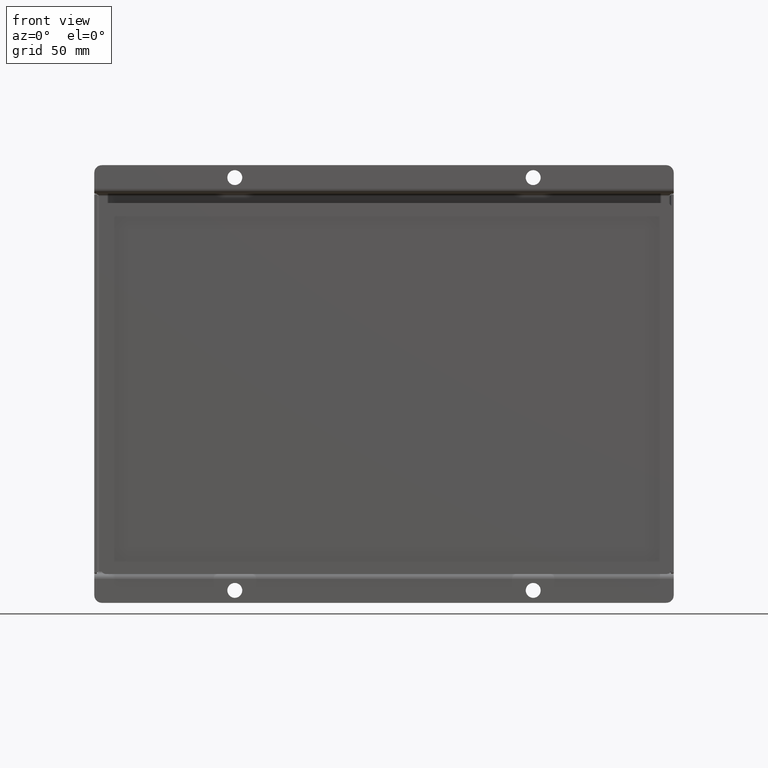
[diagram: clean part render]
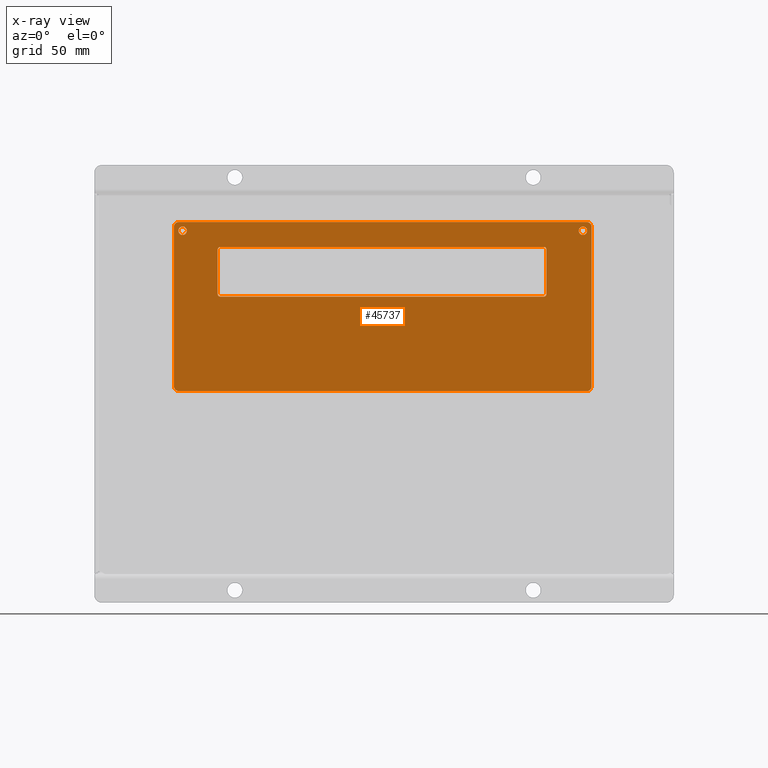
[diagram: x-ray — body ghosted, one internal face saturated and labeled with its STEP entity id]
A machine part, front view, then the same camera in x-ray: the body is ghosted and one INTERNAL B-rep face — a face not visible from any outside direction — is saturated and labeled: STEP entity #45737.
In plain terms, the highlighted planar face has unit normal (-0, 1, 0).
Its self-contained STEP definition (entity closure, byte-faithful):
#1507=FACE_BOUND('',#8488,.T.);
#1508=FACE_BOUND('',#8489,.T.);
#1509=FACE_BOUND('',#8490,.T.);
#3397=CIRCLE('',#48952,1.7);
#3398=CIRCLE('',#48953,1.7);
#3401=CIRCLE('',#48957,1.7);
#3402=CIRCLE('',#48958,1.7);
#3403=CIRCLE('',#48960,2.);
#3404=CIRCLE('',#48961,2.);
#3405=CIRCLE('',#48962,2.);
#3406=CIRCLE('',#48963,2.);
#3407=CIRCLE('',#48964,0.999999999999996);
#3408=CIRCLE('',#48965,0.999999999999996);
#3409=CIRCLE('',#48966,0.999999999999994);
#3410=CIRCLE('',#48967,0.999999999999996);
#5764=FACE_OUTER_BOUND('',#8487,.T.);
#8487=EDGE_LOOP('',(#36994,#36995,#36996,#36997,#36998,#36999,#37000,#37001));
#8488=EDGE_LOOP('',(#37002,#37003));
#8489=EDGE_LOOP('',(#37004,#37005));
#8490=EDGE_LOOP('',(#37006,#37007,#37008,#37009,#37010,#37011,#37012,#37013));
#12338=LINE('',#78730,#16205);
#12339=LINE('',#78734,#16206);
#12340=LINE('',#78738,#16207);
#12341=LINE('',#78742,#16208);
#12342=LINE('',#78748,#16209);
#12343=LINE('',#78752,#16210);
#12344=LINE('',#78756,#16211);
#12345=LINE('',#78759,#16212);
#16205=VECTOR('',#58421,10.);
#16206=VECTOR('',#58424,10.);
#16207=VECTOR('',#58427,10.);
#16208=VECTOR('',#58430,10.);
#16209=VECTOR('',#58435,10.);
#16210=VECTOR('',#58438,10.);
#16211=VECTOR('',#58441,10.);
#16212=VECTOR('',#58444,10.);
#20096=VERTEX_POINT('',#78712);
#20097=VERTEX_POINT('',#78714);
#20100=VERTEX_POINT('',#78722);
#20101=VERTEX_POINT('',#78724);
#20102=VERTEX_POINT('',#78728);
#20103=VERTEX_POINT('',#78729);
#20104=VERTEX_POINT('',#78731);
#20105=VERTEX_POINT('',#78733);
#20106=VERTEX_POINT('',#78735);
#20107=VERTEX_POINT('',#78737);
#20108=VERTEX_POINT('',#78739);
#20109=VERTEX_POINT('',#78741);
#20110=VERTEX_POINT('',#78744);
#20111=VERTEX_POINT('',#78745);
#20112=VERTEX_POINT('',#78747);
#20113=VERTEX_POINT('',#78749);
#20114=VERTEX_POINT('',#78751);
#20115=VERTEX_POINT('',#78753);
#20116=VERTEX_POINT('',#78755);
#20117=VERTEX_POINT('',#78757);
#25912=EDGE_CURVE('',#20097,#20096,#3397,.T.);
#25913=EDGE_CURVE('',#20096,#20097,#3398,.T.);
#25917=EDGE_CURVE('',#20101,#20100,#3401,.T.);
#25918=EDGE_CURVE('',#20100,#20101,#3402,.T.);
#25919=EDGE_CURVE('',#20102,#20103,#12338,.T.);
#25920=EDGE_CURVE('',#20103,#20104,#3403,.T.);
#25921=EDGE_CURVE('',#20104,#20105,#12339,.T.);
#25922=EDGE_CURVE('',#20105,#20106,#3404,.T.);
#25923=EDGE_CURVE('',#20106,#20107,#12340,.T.);
#25924=EDGE_CURVE('',#20107,#20108,#3405,.T.);
#25925=EDGE_CURVE('',#20108,#20109,#12341,.T.);
#25926=EDGE_CURVE('',#20109,#20102,#3406,.T.);
#25927=EDGE_CURVE('',#20110,#20111,#3407,.T.);
#25928=EDGE_CURVE('',#20112,#20110,#12342,.T.);
#25929=EDGE_CURVE('',#20113,#20112,#3408,.T.);
#25930=EDGE_CURVE('',#20114,#20113,#12343,.T.);
#25931=EDGE_CURVE('',#20115,#20114,#3409,.T.);
#25932=EDGE_CURVE('',#20116,#20115,#12344,.T.);
#25933=EDGE_CURVE('',#20117,#20116,#3410,.T.);
#25934=EDGE_CURVE('',#20111,#20117,#12345,.T.);
#36994=ORIENTED_EDGE('',*,*,#25919,.T.);
#36995=ORIENTED_EDGE('',*,*,#25920,.T.);
#36996=ORIENTED_EDGE('',*,*,#25921,.T.);
#36997=ORIENTED_EDGE('',*,*,#25922,.T.);
#36998=ORIENTED_EDGE('',*,*,#25923,.T.);
#36999=ORIENTED_EDGE('',*,*,#25924,.T.);
#37000=ORIENTED_EDGE('',*,*,#25925,.T.);
#37001=ORIENTED_EDGE('',*,*,#25926,.T.);
#37002=ORIENTED_EDGE('',*,*,#25912,.T.);
#37003=ORIENTED_EDGE('',*,*,#25913,.T.);
#37004=ORIENTED_EDGE('',*,*,#25917,.T.);
#37005=ORIENTED_EDGE('',*,*,#25918,.T.);
#37006=ORIENTED_EDGE('',*,*,#25927,.F.);
#37007=ORIENTED_EDGE('',*,*,#25928,.F.);
#37008=ORIENTED_EDGE('',*,*,#25929,.F.);
#37009=ORIENTED_EDGE('',*,*,#25930,.F.);
#37010=ORIENTED_EDGE('',*,*,#25931,.F.);
#37011=ORIENTED_EDGE('',*,*,#25932,.F.);
#37012=ORIENTED_EDGE('',*,*,#25933,.F.);
#37013=ORIENTED_EDGE('',*,*,#25934,.F.);
#41123=PLANE('',#48959);
#45737=ADVANCED_FACE('',(#5764,#1507,#1508,#1509),#41123,.F.);
#48952=AXIS2_PLACEMENT_3D('',#78715,#58404,#58405);
#48953=AXIS2_PLACEMENT_3D('',#78716,#58406,#58407);
#48957=AXIS2_PLACEMENT_3D('',#78725,#58415,#58416);
#48958=AXIS2_PLACEMENT_3D('',#78726,#58417,#58418);
#48959=AXIS2_PLACEMENT_3D('',#78727,#58419,#58420);
#48960=AXIS2_PLACEMENT_3D('',#78732,#58422,#58423);
#48961=AXIS2_PLACEMENT_3D('',#78736,#58425,#58426);
#48962=AXIS2_PLACEMENT_3D('',#78740,#58428,#58429);
#48963=AXIS2_PLACEMENT_3D('',#78743,#58431,#58432);
#48964=AXIS2_PLACEMENT_3D('',#78746,#58433,#58434);
#48965=AXIS2_PLACEMENT_3D('',#78750,#58436,#58437);
#48966=AXIS2_PLACEMENT_3D('',#78754,#58439,#58440);
#48967=AXIS2_PLACEMENT_3D('',#78758,#58442,#58443);
#58404=DIRECTION('center_axis',(-1.47072846324882E-14,1.,9.31067680290292E-15));
#58405=DIRECTION('ref_axis',(-1.,-1.47072846324883E-14,6.3302617434913E-15));
#58406=DIRECTION('center_axis',(-1.47072846324882E-14,1.,9.31067680290292E-15));
#58407=DIRECTION('ref_axis',(-1.,-1.47072846324883E-14,6.3302617434913E-15));
#58415=DIRECTION('center_axis',(-1.47072846324882E-14,1.,9.31067680290292E-15));
#58416=DIRECTION('ref_axis',(-1.,-1.47072846324883E-14,6.3302617434913E-15));
#58417=DIRECTION('center_axis',(-1.47072846324882E-14,1.,9.31067680290292E-15));
#58418=DIRECTION('ref_axis',(-1.,-1.47072846324883E-14,6.3302617434913E-15));
#58419=DIRECTION('center_axis',(-1.47072846324882E-14,1.,9.31067680290292E-15));
#58420=DIRECTION('ref_axis',(-1.,-1.47072846324883E-14,6.3302617434913E-15));
#58421=DIRECTION('',(6.33026174349144E-15,-9.31067680290283E-15,1.));
#58422=DIRECTION('center_axis',(1.47072846324882E-14,-1.,-9.31067680290292E-15));
#58423=DIRECTION('ref_axis',(-6.33026174349144E-15,9.31067680290283E-15,
-1.));
#58424=DIRECTION('',(-1.,-1.47072846324883E-14,6.65520506777184E-15));
#58425=DIRECTION('center_axis',(1.47072846324882E-14,-1.,-9.31067680290292E-15));
#58426=DIRECTION('ref_axis',(1.,1.47072846324883E-14,-6.3302617434913E-15));
#58427=DIRECTION('',(-6.33026174349144E-15,9.31067680290283E-15,-1.));
#58428=DIRECTION('center_axis',(1.47072846324882E-14,-1.,-9.31067680290292E-15));
#58429=DIRECTION('ref_axis',(6.33026174349144E-15,-9.31067680290283E-15,
1.));
#58430=DIRECTION('',(1.,1.47072846324883E-14,-6.65520506777184E-15));
#58431=DIRECTION('center_axis',(1.47072846324882E-14,-1.,-9.31067680290292E-15));
#58432=DIRECTION('ref_axis',(-1.,-1.47072846324883E-14,6.3302617434913E-15));
#58433=DIRECTION('center_axis',(1.47072846324882E-14,-1.,-9.31067680290292E-15));
#58434=DIRECTION('ref_axis',(-1.,-1.47072846324883E-14,6.3302617434913E-15));
#58435=DIRECTION('',(6.33026174349144E-15,-9.31067680290283E-15,1.));
#58436=DIRECTION('center_axis',(1.47072846324882E-14,-1.,-9.31067680290292E-15));
#58437=DIRECTION('ref_axis',(6.33026174349144E-15,-9.31067680290283E-15,
1.));
#58438=DIRECTION('',(1.,1.47072846324883E-14,-6.20875115899892E-15));
#58439=DIRECTION('center_axis',(1.47072846324882E-14,-1.,-9.31067680290292E-15));
#58440=DIRECTION('ref_axis',(1.,1.47072846324883E-14,-6.05270598733501E-15));
#58441=DIRECTION('',(-6.33026174349144E-15,9.31067680290283E-15,-1.));
#58442=DIRECTION('center_axis',(1.47072846324882E-14,-1.,-9.31067680290292E-15));
#58443=DIRECTION('ref_axis',(-6.33026174349144E-15,9.31067680290283E-15,
-1.));
#58444=DIRECTION('',(-1.,-1.47072846324883E-14,6.3302617434913E-15));
#78712=CARTESIAN_POINT('',(81.6999999999994,31.7000000000005,61.5999999999978));
#78714=CARTESIAN_POINT('',(78.2999999999994,31.7000000000005,61.5999999999979));
#78715=CARTESIAN_POINT('Origin',(79.9999999999994,31.7000000000005,61.5999999999978));
#78716=CARTESIAN_POINT('Origin',(79.9999999999994,31.7000000000005,61.5999999999978));
#78722=CARTESIAN_POINT('',(-79.3000000000006,31.6999999999982,61.5999999999989));
#78724=CARTESIAN_POINT('',(-82.7000000000006,31.6999999999981,61.5999999999989));
#78725=CARTESIAN_POINT('Origin',(-81.0000000000006,31.6999999999981,61.5999999999989));
#78726=CARTESIAN_POINT('Origin',(-81.0000000000006,31.6999999999981,61.5999999999989));
#78727=CARTESIAN_POINT('Origin',(-0.500000000000744,31.6999999999996,31.0999999999984));
#78728=CARTESIAN_POINT('',(83.499999999999,31.7000000000011,-0.900000000002197));
#78729=CARTESIAN_POINT('',(83.4999999999995,31.7000000000005,63.0999999999978));
#78730=CARTESIAN_POINT('',(83.499999999999,31.7000000000011,-0.900000000002197));
#78731=CARTESIAN_POINT('',(81.4999999999995,31.7000000000005,65.0999999999978));
#78732=CARTESIAN_POINT('Origin',(81.4999999999995,31.7000000000005,63.0999999999978));
#78733=CARTESIAN_POINT('',(-82.5000000000005,31.6999999999981,65.0999999999989));
#78734=CARTESIAN_POINT('',(81.4999999999995,31.7000000000005,65.0999999999978));
#78735=CARTESIAN_POINT('',(-84.5000000000006,31.6999999999981,63.0999999999989));
#78736=CARTESIAN_POINT('Origin',(-82.5000000000006,31.6999999999981,63.0999999999989));
#78737=CARTESIAN_POINT('',(-84.500000000001,31.6999999999987,-0.900000000001078));
#78738=CARTESIAN_POINT('',(-84.5000000000006,31.6999999999981,63.0999999999989));
#78739=CARTESIAN_POINT('',(-82.500000000001,31.6999999999987,-2.90000000000109));
#78740=CARTESIAN_POINT('Origin',(-82.500000000001,31.6999999999987,-0.900000000001091));
#78741=CARTESIAN_POINT('',(81.499999999999,31.7000000000011,-2.90000000000219));
#78742=CARTESIAN_POINT('',(-82.500000000001,31.6999999999987,-2.90000000000109));
#78743=CARTESIAN_POINT('Origin',(81.499999999999,31.7000000000011,-0.900000000002183));
#78744=CARTESIAN_POINT('',(65.3120299680026,31.7000000000004,54.099999999998));
#78745=CARTESIAN_POINT('',(64.3120299680026,31.7000000000003,55.099999999998));
#78746=CARTESIAN_POINT('Origin',(64.3120299680026,31.7000000000003,54.099999999998));
#78747=CARTESIAN_POINT('',(65.3120299680025,31.7000000000005,36.099999999998));
#78748=CARTESIAN_POINT('',(65.3120299680024,31.7000000000005,33.599999999998));
#78749=CARTESIAN_POINT('',(64.3120299680025,31.7000000000005,35.099999999998));
#78750=CARTESIAN_POINT('Origin',(64.3120299680025,31.7000000000005,36.099999999998));
#78751=CARTESIAN_POINT('',(-65.8879700319976,31.6999999999986,35.0999999999988));
#78752=CARTESIAN_POINT('',(-33.1939850159991,31.6999999999991,35.0999999999986));
#78753=CARTESIAN_POINT('',(-66.8879700319975,31.6999999999986,36.0999999999988));
#78754=CARTESIAN_POINT('Origin',(-65.8879700319976,31.6999999999986,36.0999999999988));
#78755=CARTESIAN_POINT('',(-66.8879700319974,31.6999999999984,54.0999999999988));
#78756=CARTESIAN_POINT('',(-66.8879700319975,31.6999999999985,42.5999999999988));
#78757=CARTESIAN_POINT('',(-65.8879700319974,31.6999999999984,55.0999999999988));
#78758=CARTESIAN_POINT('Origin',(-65.8879700319974,31.6999999999984,54.0999999999988));
#78759=CARTESIAN_POINT('',(31.906014984001,31.6999999999998,55.0999999999982));